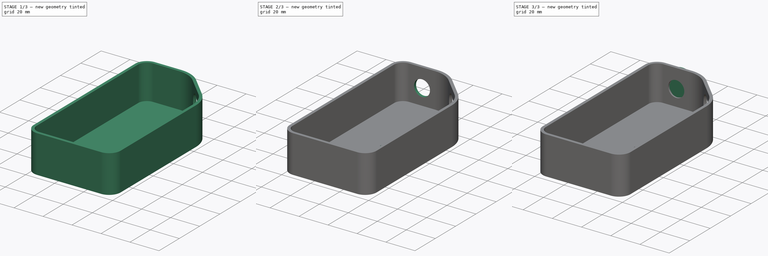
[diagram: build sequence overview — one tinted view per stage of 3, left to right]
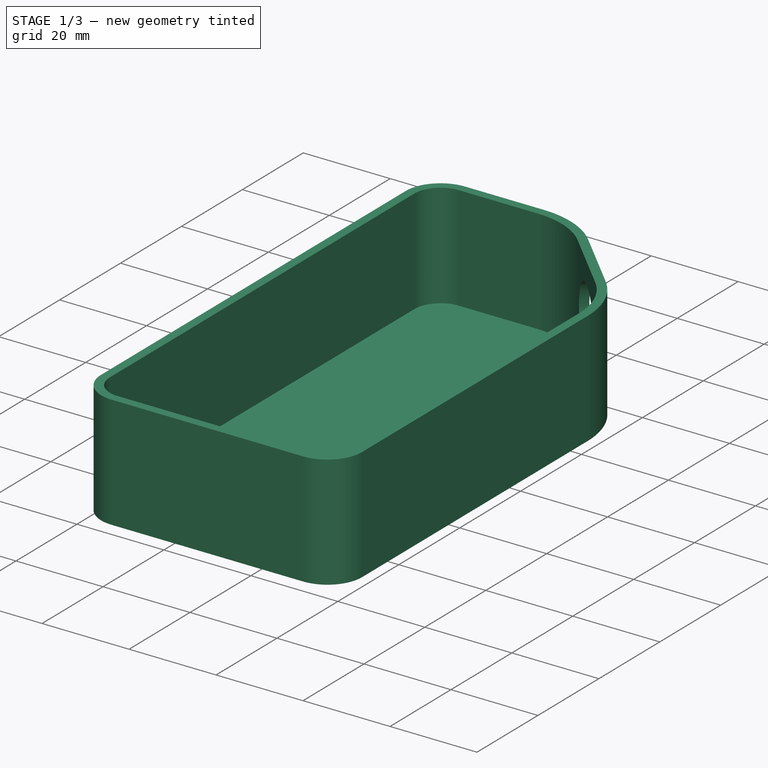
[diagram: stage 1 of 3 — iso view after this stage's code; geometry added in this stage tinted green]
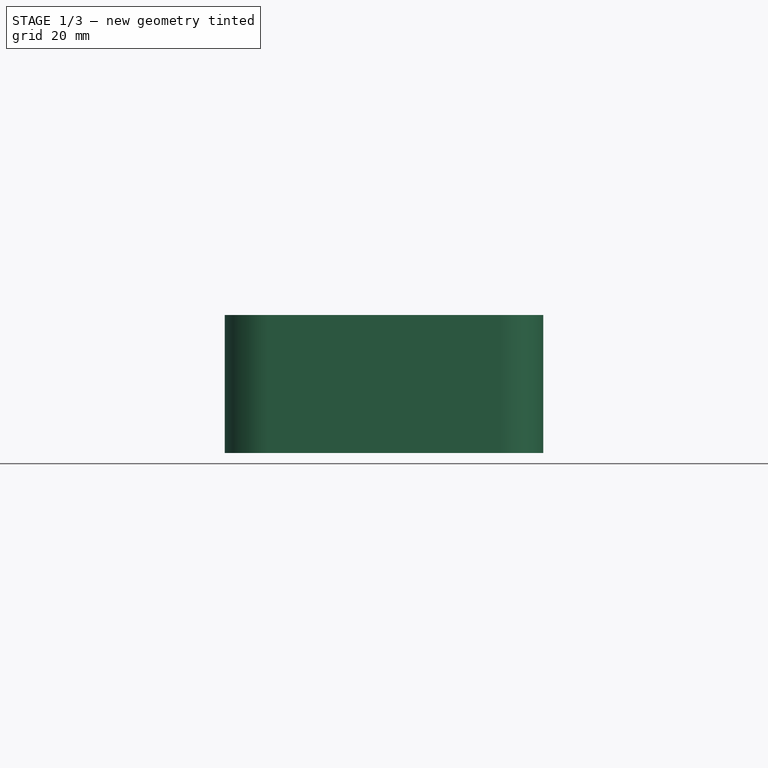
[diagram: stage 1 of 3 — front view after this stage's code; geometry added in this stage tinted green]
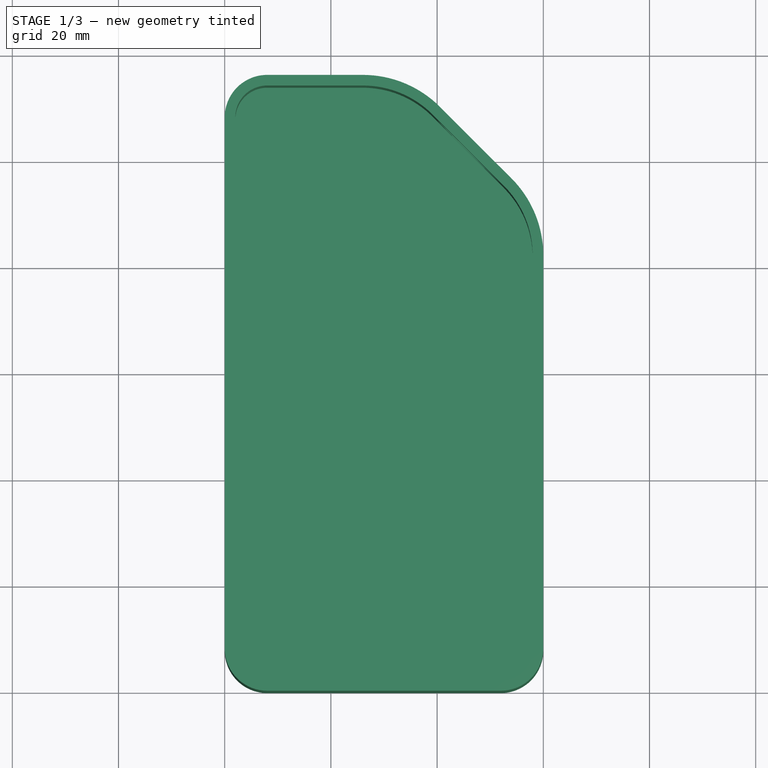
[diagram: stage 1 of 3 — top view after this stage's code; geometry added in this stage tinted green]
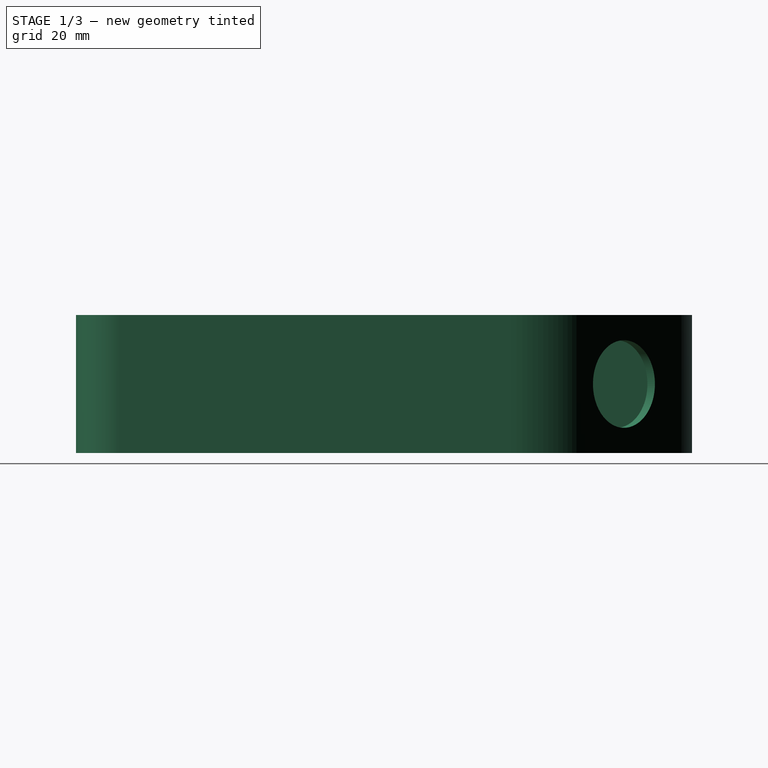
[diagram: stage 1 of 3 — right view after this stage's code; geometry added in this stage tinted green]
FCSTD DOCUMENT
Label: BodyV3
objects: Sketcher::SketchObject×7, PartDesign::Pocket×5, PartDesign::Pad×2, PartDesign::Fillet×1
note: 17 computed .brp shape members not serialized (recipe doc carries the construction recipe); baked Part::Feature solids carry a one-line shape summary decoded from their .brp

FEATURE [Sketcher::SketchObject] Sketch
  sketch-geometry (10):
    g0: LineSegment StartX=60 StartY=8 StartZ=0 EndX=60 EndY=82 EndZ=0
    g1: LineSegment StartX=0 StartY=108 StartZ=0 EndX=0 EndY=8 EndZ=0
    g2: LineSegment StartX=8 StartY=116 StartZ=0 EndX=26 EndY=116 EndZ=0
    g3: LineSegment StartX=8 StartY=0 StartZ=0 EndX=52 EndY=0 EndZ=0
    g4: ArcOfCircle CenterX=8 CenterY=108 CenterZ=0 NormalX=0 NormalY=0 NormalZ=1 Radius=8 StartAngle=1.5708 EndAngle=3.14159
    g5: ArcOfCircle CenterX=52 CenterY=8 CenterZ=0 NormalX=0 NormalY=0 NormalZ=1 Radius=8 StartAngle=4.71239 EndAngle=6.28319
    g6: ArcOfCircle CenterX=8 CenterY=8 CenterZ=0 NormalX=0 NormalY=0 NormalZ=1 Radius=8 StartAngle=3.14159 EndAngle=4.71239
    g7: LineSegment StartX=40.5416 StartY=109.977 StartZ=0 EndX=53.9767 EndY=96.5416 EndZ=0
    g8: ArcOfCircle CenterX=26 CenterY=95.435 CenterZ=0 NormalX=0 NormalY=0 NormalZ=1 Radius=20.565 StartAngle=0.785399 EndAngle=1.5708
    g9: ArcOfCircle CenterX=39.435 CenterY=82 CenterZ=0 NormalX=0 NormalY=0 NormalZ=1 Radius=20.565 StartAngle=6.28319 EndAngle=7.06858
  constraints (34):
    c: Vertical(g0)
    c: Vertical(g1)
    c: Horizontal(g2)
    c: Horizontal(g3)
    c: Coincident(g6,g1)
    c: Coincident(g3,g6)
    c: Coincident(g3,g5)
    c: Coincident(g5,g0)
    c: Coincident(g2,g4)
    c: Coincident(g1,g4)
    c: Radius(g4) = 8
    c: Equal(g5,g6)
    c: Tangent(g4,g2)
    c: Tangent(g5,g3)
    c: DistanceX(g1,g0) = 60
    c: DistanceX(g1) = 0
    c: Tangent(g1,g4)
    c: Tangent(g3,g6)
    c: Tangent(g6,g1)
    c: DistanceY(g3) = 0
    c: Angle(g7) = -0.785398
    c: Coincident(g7,g8)
    c: Coincident(g8,g2)
    c: Tangent(g8,g2)
    c: Tangent(g7,g8)
    c: Coincident(g9,g7)
    c: Tangent(g9,g7)
    c: Coincident(g9,g0)
    c: Distance(g7) = 19
    c: Distance(g2) = 18
    c: Equal(g9,g8)
    c: Equal(g4,g6)
    c: Tangent(g0,g9)
    c: Tangent(g5,g0)
FEATURE [PartDesign::Pad] Pad
  Length = 26
  MirroredExtent = false
  Sketch = -> Sketch
FEATURE [Sketcher::SketchObject] Sketch001
  Placement = pos=(0,0,26) rot=(0,0,1;0rad)
  Support = -> Pad [Face12]
  sketch-geometry (10):
    g0: ArcOfCircle CenterX=8 CenterY=108 CenterZ=0 NormalX=0 NormalY=0 NormalZ=1 Radius=6 StartAngle=1.57079 EndAngle=3.14159
    g1: ArcOfCircle CenterX=26 CenterY=95.435 CenterZ=0 NormalX=0 NormalY=0 NormalZ=1 Radius=18.565 StartAngle=0.785398 EndAngle=1.5708
    g2: ArcOfCircle CenterX=39.435 CenterY=82 CenterZ=0 NormalX=0 NormalY=0 NormalZ=1 Radius=18.565 StartAngle=6.28319 EndAngle=7.06858
    g3: ArcOfCircle CenterX=52 CenterY=8 CenterZ=0 NormalX=0 NormalY=0 NormalZ=1 Radius=6 StartAngle=4.71239 EndAngle=6.28319
    g4: ArcOfCircle CenterX=8 CenterY=8 CenterZ=0 NormalX=0 NormalY=0 NormalZ=1 Radius=6 StartAngle=3.14159 EndAngle=4.71239
    g5: LineSegment StartX=8.00001 StartY=114 StartZ=0 EndX=26 EndY=114 EndZ=0
    g6: LineSegment StartX=2 StartY=108 StartZ=0 EndX=2 EndY=8 EndZ=0
    g7: LineSegment StartX=39.1274 StartY=108.562 StartZ=0 EndX=52.5624 EndY=95.1274 EndZ=0
    g8: LineSegment StartX=58 StartY=82 StartZ=0 EndX=58 EndY=8 EndZ=0
    g9: LineSegment StartX=8 StartY=2 StartZ=0 EndX=52 EndY=2 EndZ=0
  constraints (35):
    c: Horizontal(g5)
    c: Tangent(g5,g1)
    c: Coincident(g1,g5)
    c: Coincident(g0,g5)
    c: Vertical(g6)
    c: Tangent(g6,g0)
    c: Coincident(g4,g6)
    c: Coincident(g0,g6)
    c: Coincident(g2,g7)
    c: Coincident(g1,g7)
    c: Vertical(g8)
    c: Coincident(g3,g8)
    c: Coincident(g2,g8)
    c: Horizontal(g9)
    c: Coincident(g9,g3)
    c: Coincident(g9,g4)
    c: Radius(g0) = 6
    c: Equal(g0,g4)
    c: Tangent(g7,g1)
    c: Tangent(g2,g8)
    c: DistanceY(g2,g3) = -80
    c: Equal(g3,g4)
    c: Distance(g7) = 19
    c: Distance(g5) = 18
    c: DistanceX(g4) = 8
    c: DistanceY(g4) = 8
    c: Tangent(g2,g7)
    c: Tangent(g4,g6)
    c: Tangent(g4,g9)
    c: Tangent(g5,g0)
    c: Tangent(g3,g8)
    c: Tangent(g3,g9)
    c: DistanceX(g4,g3) = 44
    c: DistanceY(g6) = -100
    c: Radius(g2) = 18.565
FEATURE [PartDesign::Pocket] Pocket
  Length = 24
  Sketch = -> Sketch001
  Type = 0
FEATURE [Sketcher::SketchObject] Sketch002
  Placement = pos=(75.2591,75.2592,0) rot=(0.281085,0.678598,0.678598;2.59356rad)
  Support = -> Pocket [Face7]
  sketch-geometry (1):
    g0: Circle CenterX=39.5 CenterY=13 CenterZ=0 NormalX=0 NormalY=0 NormalZ=1 Radius=8.25
  constraints (3):
    c: Radius(g0) = 8.25
    c: DistanceX(g0) = 39.5
    c: DistanceY(g0) = 13
FEATURE [PartDesign::Pocket] Pocket001
  Length = 3
  Sketch = -> Sketch002
  Type = 0
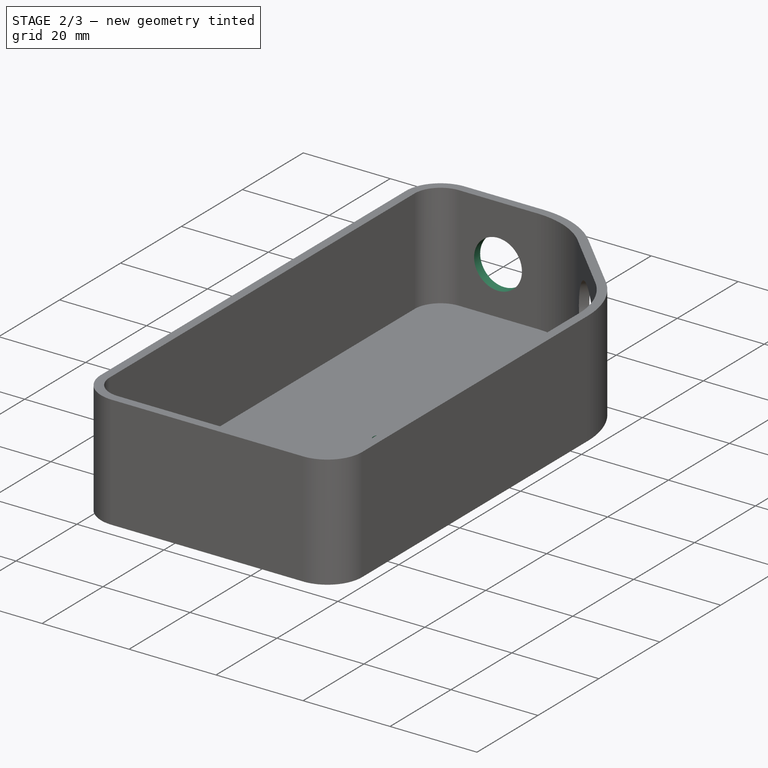
[diagram: stage 2 of 3 — iso view after this stage's code; geometry added in this stage tinted green]
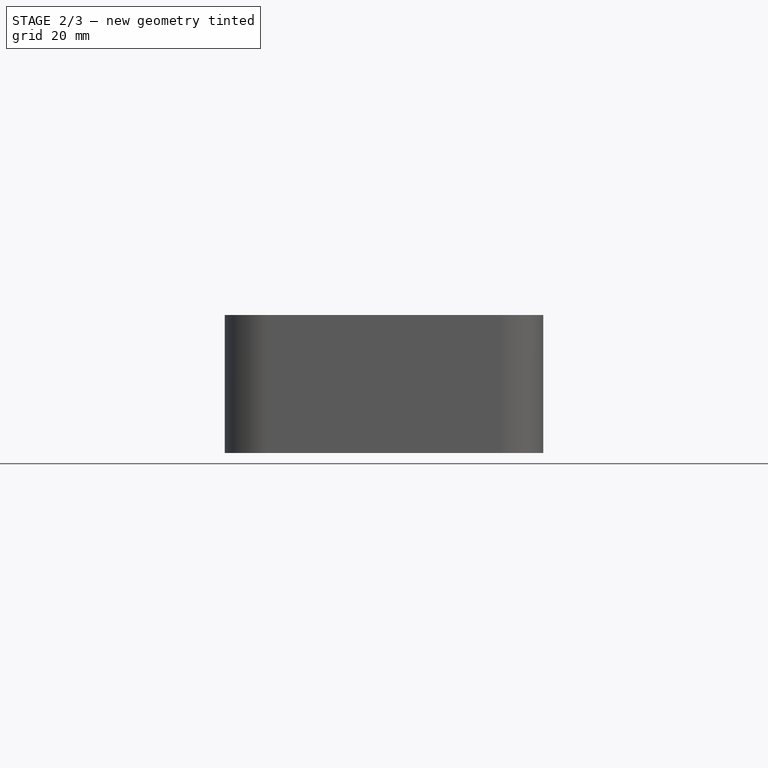
[diagram: stage 2 of 3 — front view after this stage's code; geometry added in this stage tinted green]
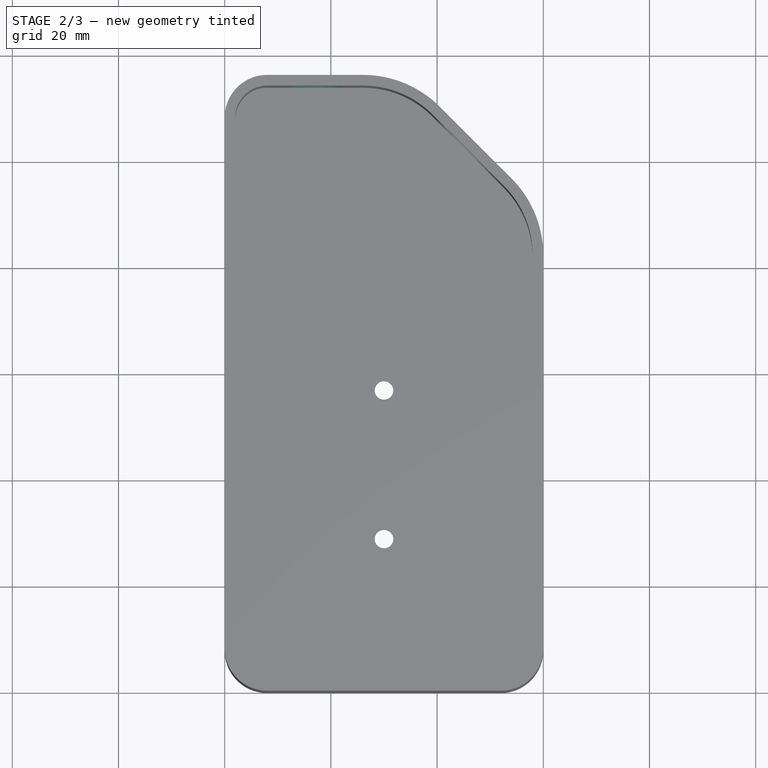
[diagram: stage 2 of 3 — top view after this stage's code; geometry added in this stage tinted green]
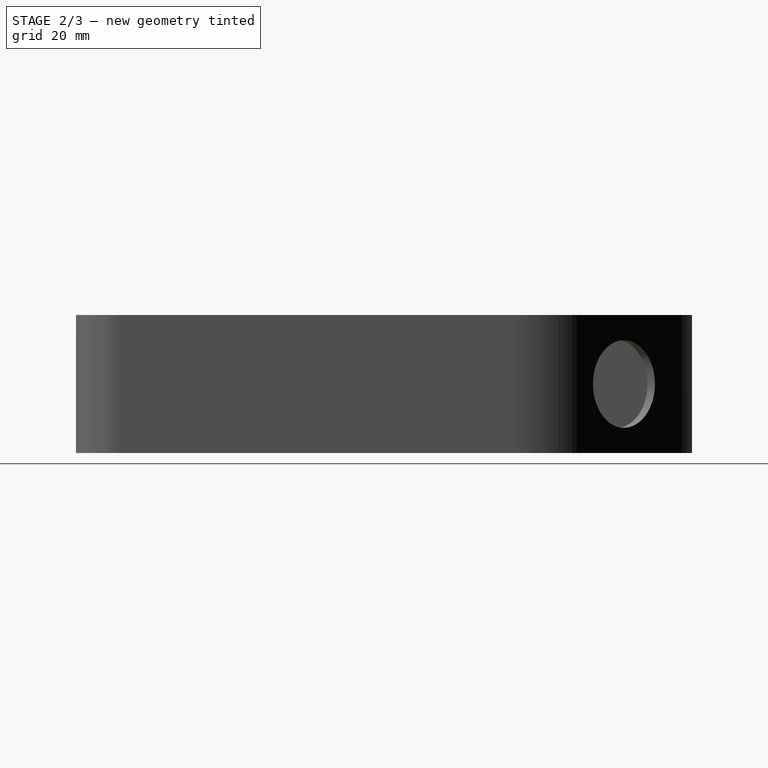
[diagram: stage 2 of 3 — right view after this stage's code; geometry added in this stage tinted green]
FEATURE [Sketcher::SketchObject] Sketch003
  Placement = pos=(0,116,0) rot=(0,0.707107,0.707107;3.14159rad)
  Support = -> Pocket001 [Face11]
  sketch-geometry (1):
    g0: Circle CenterX=-17 CenterY=13 CenterZ=0 NormalX=0 NormalY=0 NormalZ=1 Radius=5.5
  constraints (3):
    c: Radius(g0) = 5.5
    c: DistanceX(g0) = -17
    c: DistanceY(g0) = 13
FEATURE [PartDesign::Pocket] Pocket002
  Length = 3
  Sketch = -> Sketch003
  Type = 0
FEATURE [Sketcher::SketchObject] Sketch004
  Placement = pos=(0,0,2) rot=(0,0,1;0rad)
  Support = -> Pocket002 [Face25]
  sketch-geometry (3):
    g0: Circle CenterX=30 CenterY=29 CenterZ=0 NormalX=0 NormalY=0 NormalZ=1 Radius=1.75
    g1: Circle CenterX=30 CenterY=57 CenterZ=0 NormalX=0 NormalY=0 NormalZ=1 Radius=1.75
    g2: LineSegment [constr] StartX=30 StartY=57 StartZ=0 EndX=30 EndY=29 EndZ=0
  constraints (8):
    c: Vertical(g2)
    c: Coincident(g2,g1)
    c: Coincident(g2,g0)
    c: Radius(g1) = 1.75
    c: Equal(g1,g0)
    c: DistanceX(g0) = 30
    c: DistanceY(g0) = 29
    c: DistanceY(g2) = -28
FEATURE [PartDesign::Pocket] Pocket003
  Length = 5
  Sketch = -> Sketch004
  Type = 0
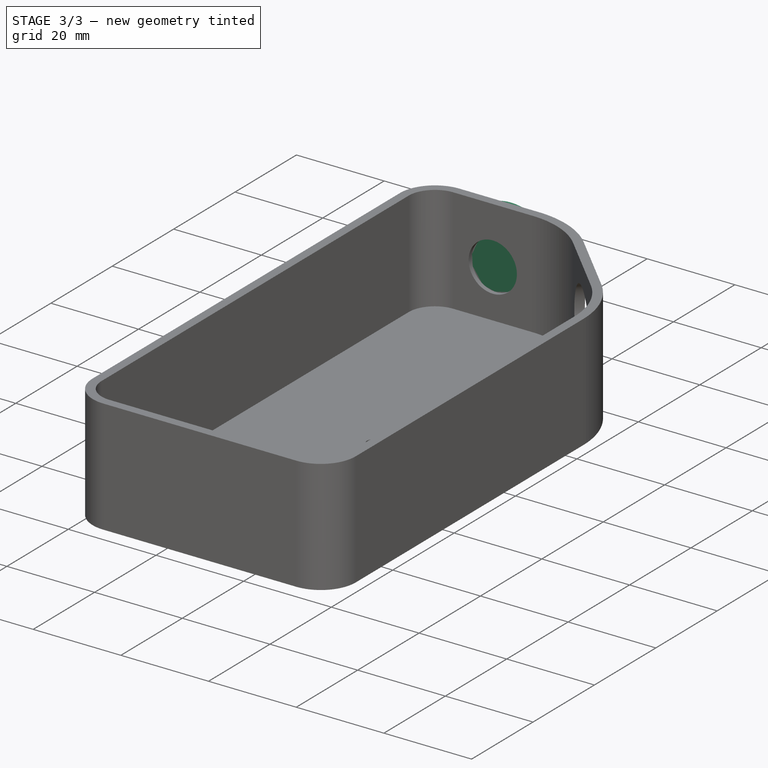
[diagram: stage 3 of 3 — iso view after this stage's code; geometry added in this stage tinted green]
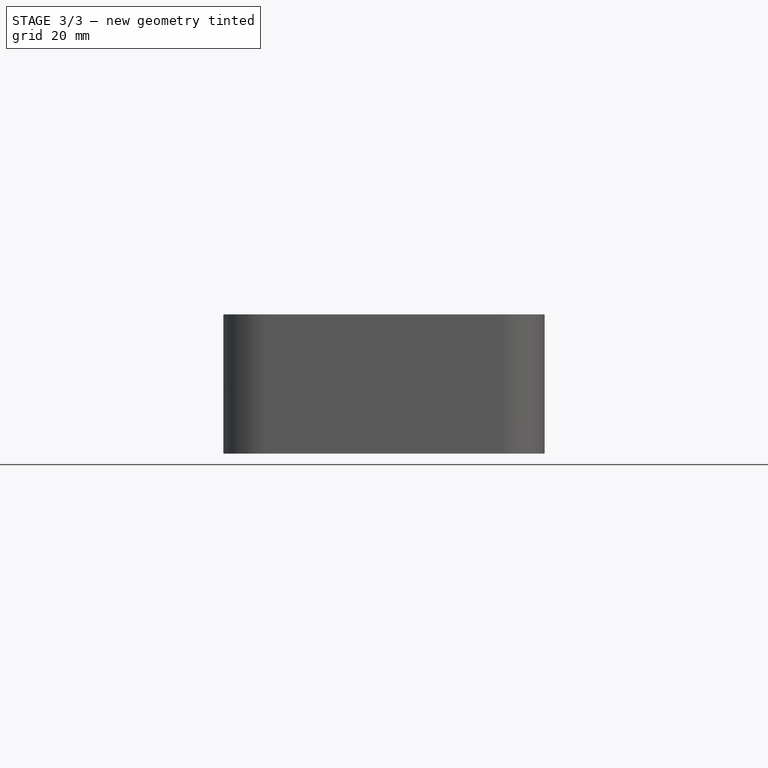
[diagram: stage 3 of 3 — front view after this stage's code; geometry added in this stage tinted green]
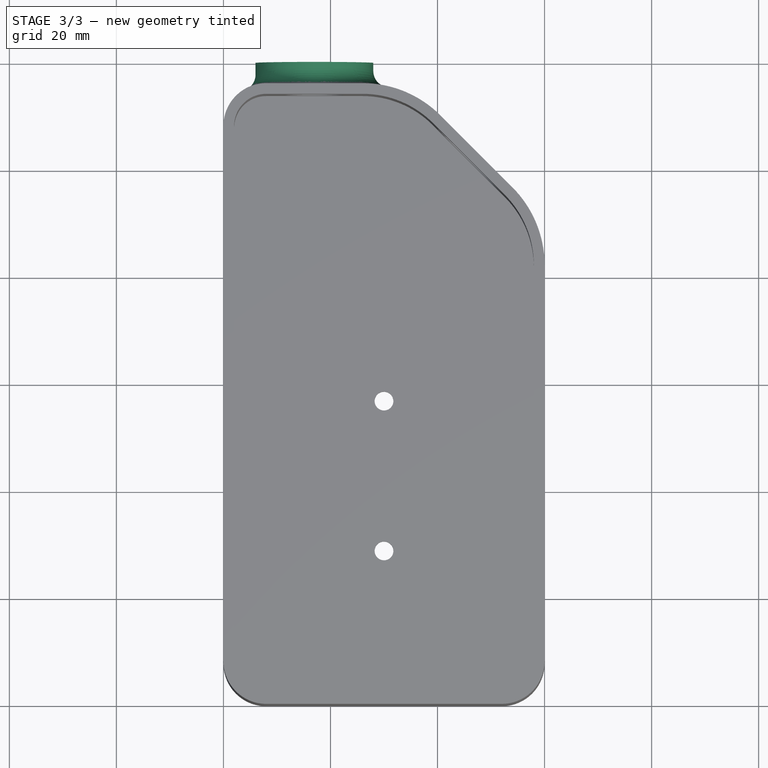
[diagram: stage 3 of 3 — top view after this stage's code; geometry added in this stage tinted green]
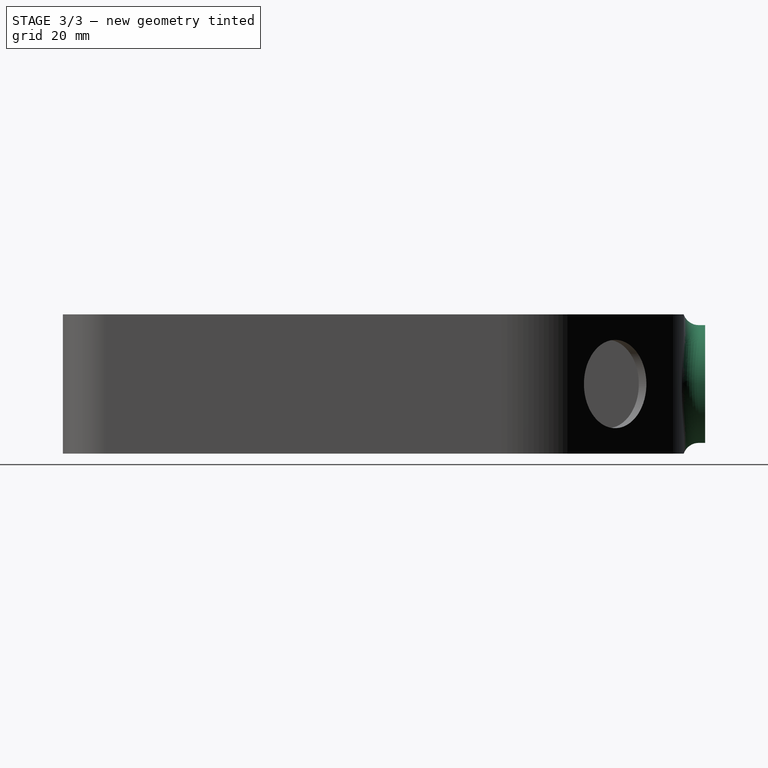
[diagram: stage 3 of 3 — right view after this stage's code; geometry added in this stage tinted green]
FEATURE [Sketcher::SketchObject] Sketch005
  Placement = pos=(0,116,0) rot=(0,0.707107,0.707107;3.14159rad)
  Support = -> Pocket003 [Face11]
  sketch-geometry (1):
    g0: Circle CenterX=-17 CenterY=13 CenterZ=0 NormalX=0 NormalY=0 NormalZ=1 Radius=11
  constraints (3):
    c: Radius(g0) = 11
    c: DistanceX(g0) = -17
    c: DistanceY(g0) = 13
FEATURE [PartDesign::Pocket] Pocket004
  Length = 1
  Sketch = -> Sketch005
  Type = 0
FEATURE [Sketcher::SketchObject] Sketch006
  Placement = pos=(0,115,0) rot=(0,0.707107,0.707107;3.14159rad)
  Support = -> Pocket004 [Face30]
  sketch-geometry (1):
    g0: Circle CenterX=-17 CenterY=13 CenterZ=0 NormalX=0 NormalY=0 NormalZ=1 Radius=11
  constraints (3):
    c: Radius(g0) = 11
    c: DistanceX(g0) = -17
    c: DistanceY(g0) = 13
FEATURE [PartDesign::Pad] Pad001
  Length = 5
  MirroredExtent = false
  Sketch = -> Sketch006
FEATURE [PartDesign::Fillet] Fillet
  Base = -> Pad001 [Edge52,Edge50,Edge55,Edge57,Edge83]
  Radius = 3
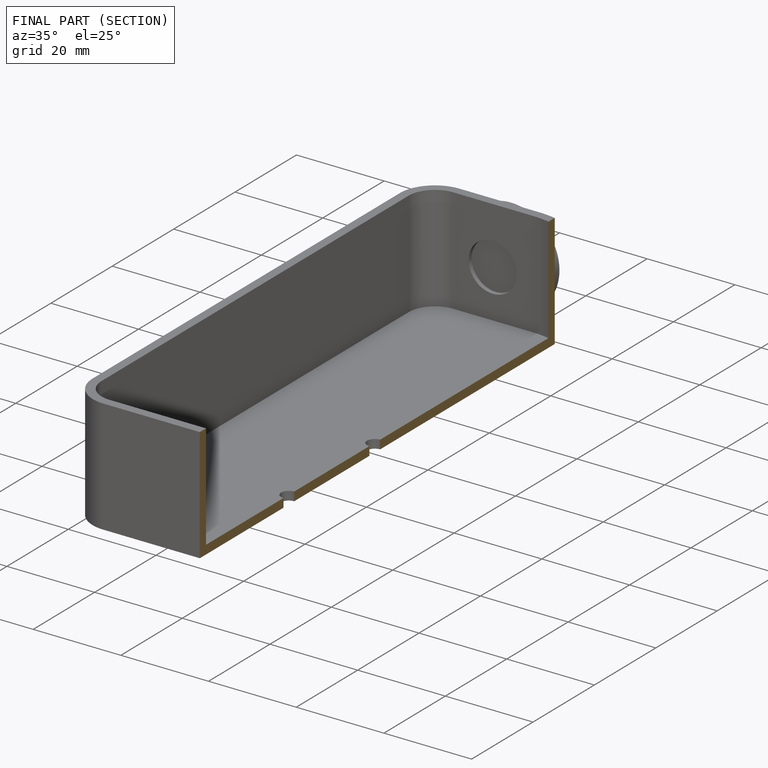
[diagram: finished part — half-section view (interior)]
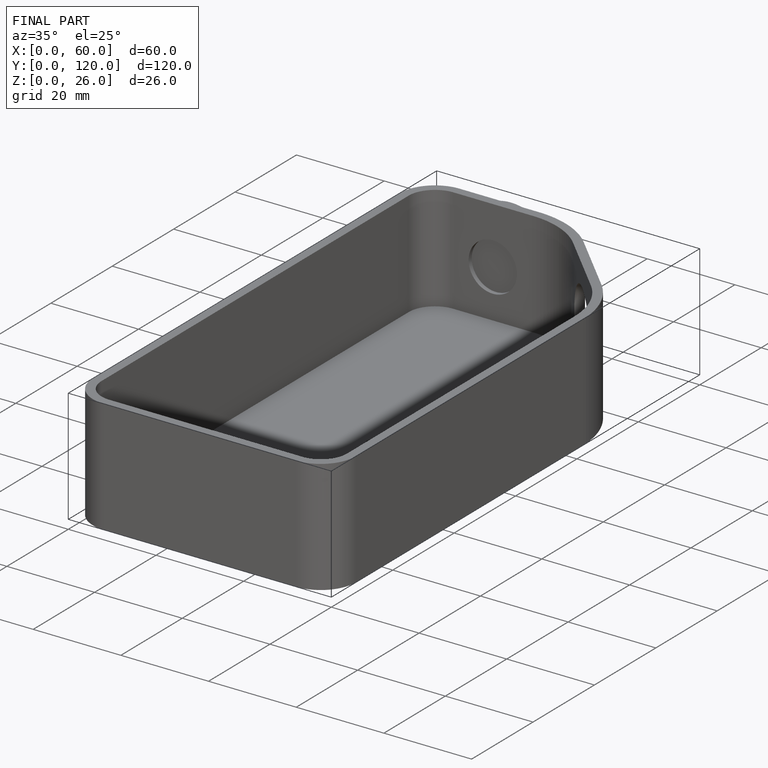
[diagram: finished part — iso view with bounding-box wireframe]
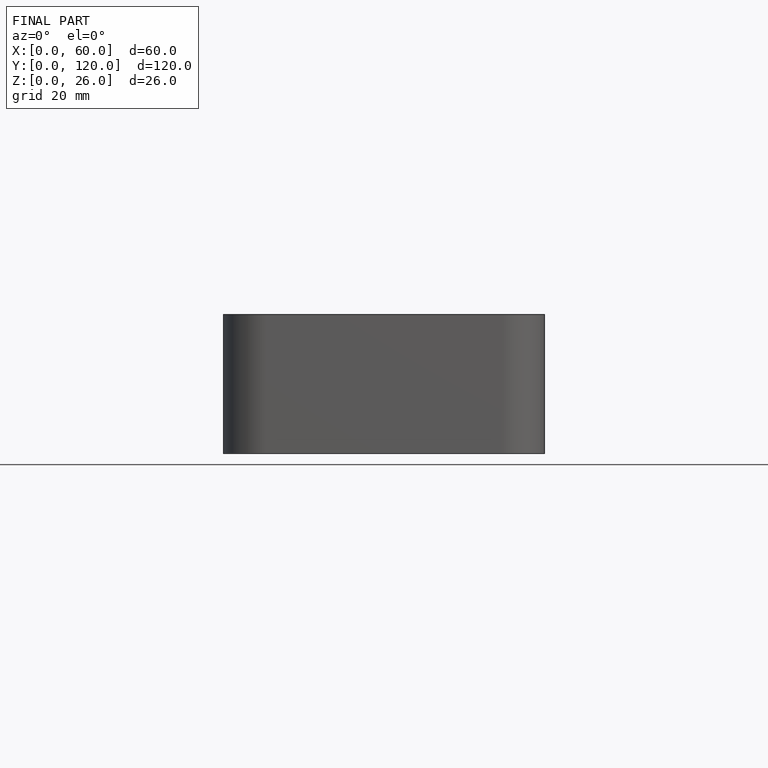
[diagram: finished part — front view with bounding-box wireframe]
